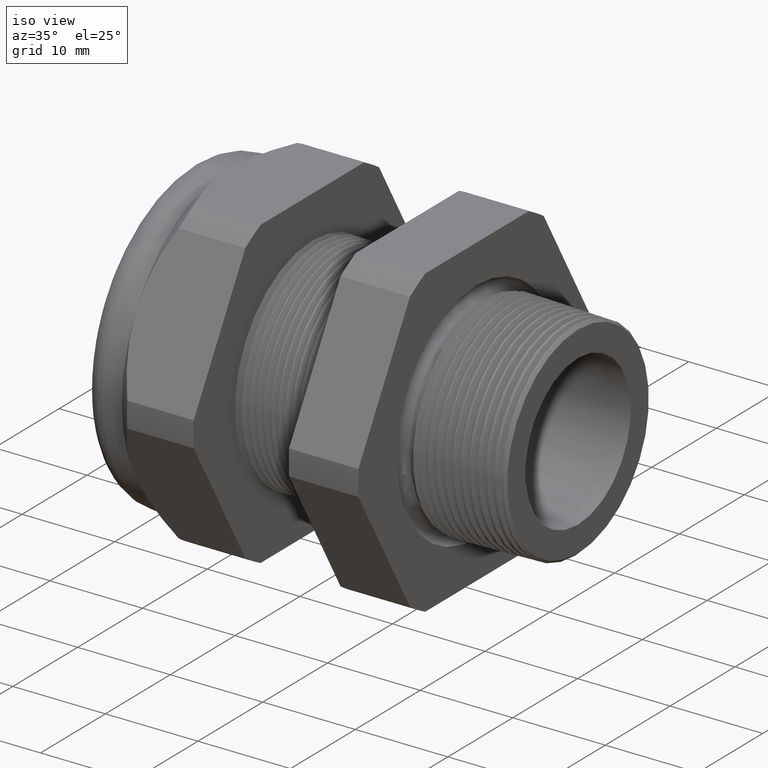
[diagram: clean part render]
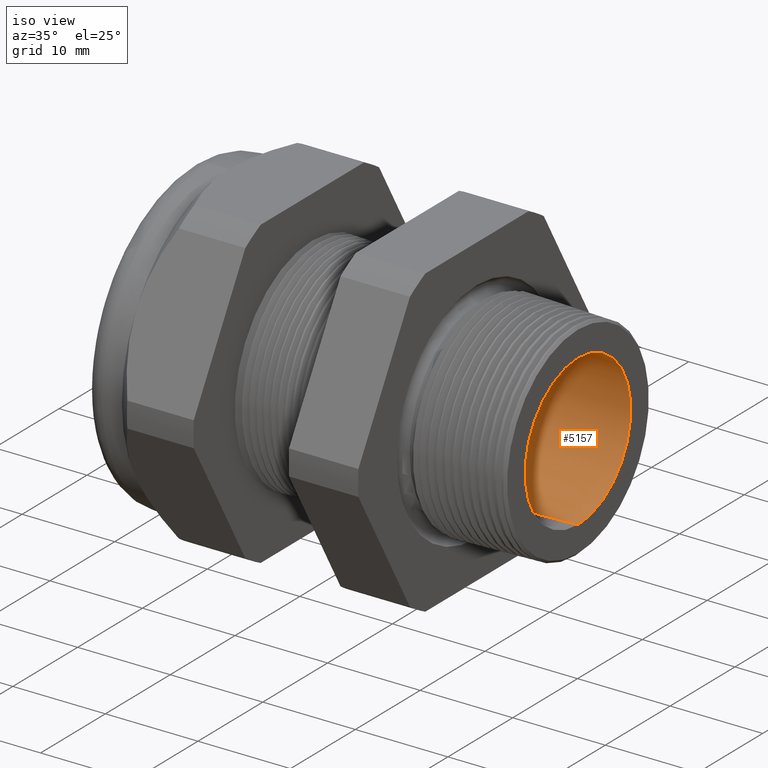
[diagram: same view with one face highlighted and labeled with its STEP entity id]
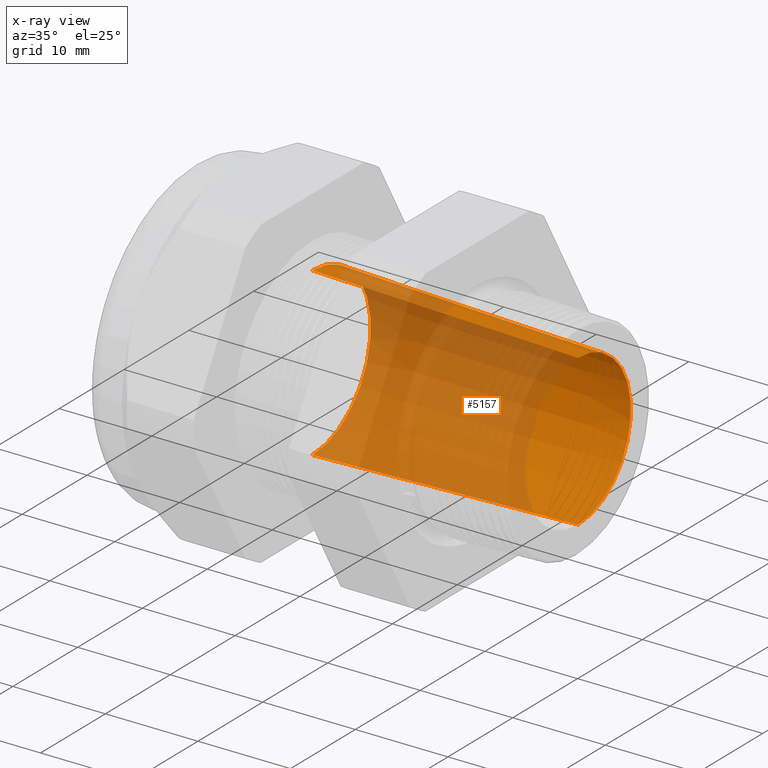
[diagram: x-ray of the same camera — body ghosted, the highlighted face saturated]
A machine part, iso view. The second image highlights one B-rep face of the part: STEP entity #5157.
The next image is the same camera in x-ray: the body ghosted, the highlighted face saturated — about 69% of this face is hidden behind the body in this view.
In plain terms, the highlighted conical surface has half-angle 1.753 deg.
Its self-contained STEP definition (entity closure, byte-faithful):
#86 = EDGE_LOOP ( 'NONE', ( #5561, #5569, #5564, #5592 ) ) ;
#247 = VERTEX_POINT ( 'NONE', #1800 ) ;
#249 = EDGE_CURVE ( 'NONE', #975, #247, #1799, .T. ) ;
#975 = VERTEX_POINT ( 'NONE', #2958 ) ;
#976 = VERTEX_POINT ( 'NONE', #2957 ) ;
#978 = EDGE_CURVE ( 'NONE', #976, #979, #2956, .T. ) ;
#979 = VERTEX_POINT ( 'NONE', #2952 ) ;
#1796 = DIRECTION ( 'NONE',  ( -0.9995318591926351000, 0.0000000000000000000, 0.03059513783126741000 ) ) ;
#1797 = VECTOR ( 'NONE', #1796, 39.37007874015748900 ) ;
#1798 = CARTESIAN_POINT ( 'NONE',  ( -1.010314960629921100, 0.0000000000000000000, 0.3549999999999999800 ) ) ;
#1799 = LINE ( 'NONE', #1798, #1797 ) ;
#1800 = CARTESIAN_POINT ( 'NONE',  ( -1.010314960629921100, 4.347496136973103500E-017, 0.3549999999999999800 ) ) ;
#2952 = CARTESIAN_POINT ( 'NONE',  ( -1.010314960629921100, 0.0000000000000000000, -0.3549999999999999800 ) ) ;
#2953 = DIRECTION ( 'NONE',  ( -0.9995318591926351000, 3.746823761453372400E-018, -0.03059513783126741000 ) ) ;
#2954 = VECTOR ( 'NONE', #2953, 39.37007874015748900 ) ;
#2955 = CARTESIAN_POINT ( 'NONE',  ( -1.010314960629921100, 4.347496136973103500E-017, -0.3549999999999999800 ) ) ;
#2956 = LINE ( 'NONE', #2955, #2954 ) ;
#2957 = CARTESIAN_POINT ( 'NONE',  ( 0.1200000000000000200, 4.135642411978520400E-017, -0.3204016610924743100 ) ) ;
#2958 = CARTESIAN_POINT ( 'NONE',  ( 0.1200000000000000200, 0.0000000000000000000, 0.3204016610924743100 ) ) ;
#3946 = DIRECTION ( 'NONE',  ( 0.0000000000000000000, 0.0000000000000000000, 1.000000000000000000 ) ) ;
#3947 = DIRECTION ( 'NONE',  ( -1.000000000000000000, 0.0000000000000000000, 0.0000000000000000000 ) ) ;
#3948 = CARTESIAN_POINT ( 'NONE',  ( -1.010314960629921100, 0.0000000000000000000, 0.0000000000000000000 ) ) ;
#3949 = AXIS2_PLACEMENT_3D ( 'NONE', #3948, #3947, #3946 ) ;
#3951 = CONICAL_SURFACE ( 'NONE', #3949, 0.3549999999999999800, 0.03059991300296905500 ) ;
#3952 = FACE_OUTER_BOUND ( 'NONE', #86, .T. ) ;
#3953 = DIRECTION ( 'NONE',  ( 0.0000000000000000000, 0.0000000000000000000, -1.000000000000000000 ) ) ;
#3954 = DIRECTION ( 'NONE',  ( 1.000000000000000000, 0.0000000000000000000, 0.0000000000000000000 ) ) ;
#3955 = CARTESIAN_POINT ( 'NONE',  ( -1.010314960629921100, 0.0000000000000000000, 0.0000000000000000000 ) ) ;
#3956 = AXIS2_PLACEMENT_3D ( 'NONE', #3955, #3954, #3953 ) ;
#3957 = CIRCLE ( 'NONE', #3956, 0.3549999999999999800 ) ;
#4815 = DIRECTION ( 'NONE',  ( 0.0000000000000000000, 0.0000000000000000000, -1.000000000000000000 ) ) ;
#4816 = DIRECTION ( 'NONE',  ( 1.000000000000000000, 0.0000000000000000000, 0.0000000000000000000 ) ) ;
#4817 = CARTESIAN_POINT ( 'NONE',  ( 0.1200000000000000200, 0.0000000000000000000, 0.0000000000000000000 ) ) ;
#4818 = AXIS2_PLACEMENT_3D ( 'NONE', #4817, #4816, #4815 ) ;
#4819 = CIRCLE ( 'NONE', #4818, 0.3204016610924743100 ) ;
#5156 = EDGE_CURVE ( 'NONE', #979, #247, #3957, .T. ) ;
#5157 = ADVANCED_FACE ( 'NONE', ( #3952 ), #3951, .F. ) ;
#5561 = ORIENTED_EDGE ( 'NONE', *, *, #978, .F. ) ;
#5564 = ORIENTED_EDGE ( 'NONE', *, *, #249, .T. ) ;
#5569 = ORIENTED_EDGE ( 'NONE', *, *, #5597, .T. ) ;
#5592 = ORIENTED_EDGE ( 'NONE', *, *, #5156, .F. ) ;
#5597 = EDGE_CURVE ( 'NONE', #976, #975, #4819, .T. ) ;